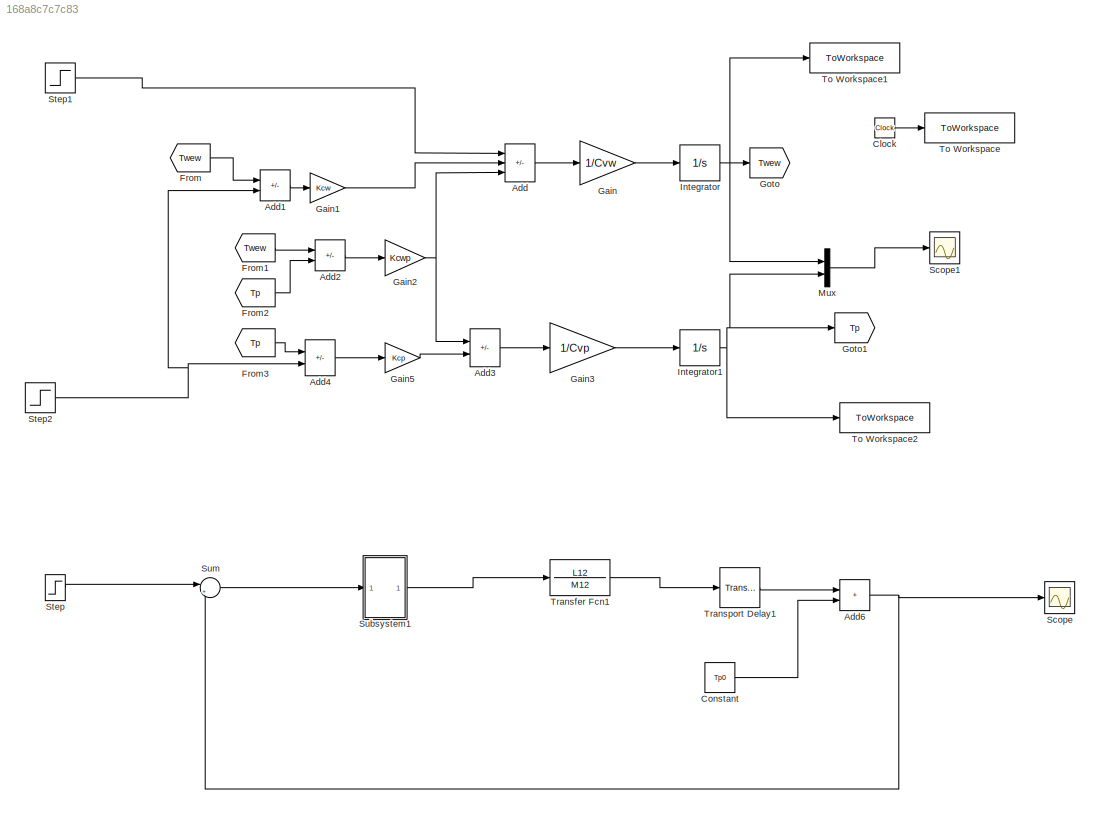
MODEL slx_168a8c7c7c83
KIND model
CONFIG AbsTol = auto
CONFIG EnableMultiTasking = off
CONFIG FixedStep = auto
CONFIG MaxStep = auto
CONFIG MinStep = auto
CONFIG RelTol = 1e-3
CONFIG SampleTimeConstraint = Unconstrained
CONFIG SolverName = VariableStepAuto
CONFIG StartTime = 0.0
CONFIG StopTime = czas_symulacji
BLOCK [Sum] Add
  IconShape = rectangular
  Inputs = +--
BLOCK [Sum] Add1
  IconShape = rectangular
  Inputs = +-
BLOCK [Sum] Add2
  IconShape = rectangular
  Inputs = +-
BLOCK [Sum] Add3
  IconShape = rectangular
  Inputs = +-
BLOCK [Sum] Add4
  IconShape = rectangular
  Inputs = +-
BLOCK [Sum] Add6
  IconShape = rectangular
BLOCK [Clock] Clock
BLOCK [Constant] Constant
  Value = Tp0
BLOCK [From] From
  GotoTag = Twew
BLOCK [From] From1
  GotoTag = Twew
BLOCK [From] From2
  GotoTag = Tp
BLOCK [From] From3
  GotoTag = Tp
BLOCK [Gain] Gain
  Gain = 1/Cvw
BLOCK [Gain] Gain1
  Gain = Kcw
BLOCK [Gain] Gain2
  Gain = Kcwp
BLOCK [Gain] Gain3
  Gain = 1/Cvp
BLOCK [Gain] Gain5
  Gain = Kcp
BLOCK [Goto] Goto
  GotoTag = Twew
BLOCK [Goto] Goto1
  GotoTag = Tp
BLOCK [Integrator] Integrator
  InitialCondition = Twew0
BLOCK [Integrator] Integrator1
  InitialCondition = Tp0
BLOCK [Mux] Mux
  DisplayOption = bar
  Inputs = 2
BLOCK [Scope] Scope
  Floating = off
  NumInputPorts = 1
  ScopeSpecificationString = Simulink.scopes.TimeScopeBlockCfg('CurrentConfiguration', extmgr.ConfigurationSet(extmgr.Configuration('Core','General UI',true),extmgr.Configuration('Core','Source UI',true),extmgr.Configuration('Sources','WiredSimulink',true),extmgr.Configuration('Visuals','Time Domain',true,'SerializedDisplays',{struct('MinYLimReal','9.64097','MaxYLimReal','13.2313','YLabelReal','','MinYLimMag','9.64097','MaxYL...<+1390ch>
BLOCK [Scope] Scope1
  Floating = off
  NumInputPorts = 1
  ScopeSpecificationString = Simulink.scopes.TimeScopeBlockCfg('CurrentConfiguration', extmgr.ConfigurationSet(extmgr.Configuration('Core','General UI',true),extmgr.Configuration('Core','Source UI',true),extmgr.Configuration('Sources','WiredSimulink',true,'DataLoggingVariableName','ScopeData1'),extmgr.Configuration('Visuals','Time Domain',true,'SerializedDisplays',{struct('MinYLimReal','8.2502','MaxYLimReal','25.74822','YLabe...<+1436ch>
BLOCK [Step] Step
  After = Tz0+dTz
  Before = Tz0
  SampleTime = 0
  Time = t0
BLOCK [Step] Step1
  After = qg0+dqg
  Before = qg0
  SampleTime = 0
  Time = t0
BLOCK [Step] Step2
  After = Tzew0+dTzew
  Before = Tzew0
  SampleTime = 0
  Time = t0
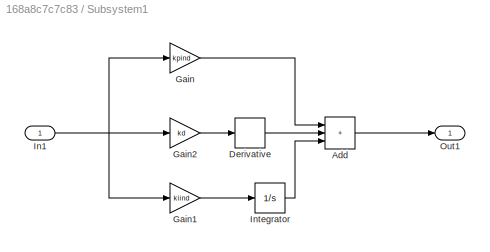
BLOCK [SubSystem] Subsystem1
BLOCK [Sum] Subsystem1/Add
  IconShape = rectangular
  Inputs = +++
BLOCK [Derivative] Subsystem1/Derivative
BLOCK [Gain] Subsystem1/Gain
  Gain = kpind
BLOCK [Gain] Subsystem1/Gain1
  Gain = kiind
BLOCK [Gain] Subsystem1/Gain2
  Gain = kd
BLOCK [Inport] Subsystem1/In1
BLOCK [Integrator] Subsystem1/Integrator
BLOCK [Outport] Subsystem1/Out1
BLOCK [Sum] Sum
  Inputs = |+-
BLOCK [ToWorkspace] To Workspace
  FixptAsFi = on
  MaxDataPoints = inf
  SampleTime = -1
  SaveFormat = Timeseries
  VariableName = t
BLOCK [ToWorkspace] To Workspace1
  FixptAsFi = on
  MaxDataPoints = inf
  SampleTime = -1
  VariableName = Twew
BLOCK [ToWorkspace] To Workspace2
  FixptAsFi = on
  MaxDataPoints = inf
  SampleTime = -1
  VariableName = Tp
BLOCK [TransferFcn] Transfer Fcn1
  Denominator = M12
  Numerator = L12
BLOCK [TransportDelay] Transport Delay1
  DelayTime = T0p
LINE Add1:1 -> Gain1:1
LINE Add2:1 -> Gain2:1
LINE Add3:1 -> Gain3:1
LINE Add4:1 -> Gain5:1
NET Add6:1 -> Scope:1, Sum:2
LINE Add:1 -> Gain:1
LINE Clock:1 -> To Workspace:1
LINE Constant:1 -> Add6:2
LINE From1:1 -> Add2:1
LINE From2:1 -> Add2:2
LINE From3:1 -> Add4:1
LINE From:1 -> Add1:1
LINE Gain1:1 -> Add:2
NET Gain2:1 -> Add3:1, Add:3
LINE Gain3:1 -> Integrator1:1
LINE Gain5:1 -> Add3:2
LINE Gain:1 -> Integrator:1
NET Integrator1:1 -> Goto1:1, Mux:2, To Workspace2:1
NET Integrator:1 -> Goto:1, Mux:1, To Workspace1:1
LINE Mux:1 -> Scope1:1
LINE Step1:1 -> Add:1
NET Step2:1 -> Add1:2, Add4:2
LINE Step:1 -> Sum:1
LINE Subsystem1/Add:1 -> Subsystem1/Out1:1
LINE Subsystem1/Derivative:1 -> Subsystem1/Add:2
LINE Subsystem1/Gain1:1 -> Subsystem1/Integrator:1
LINE Subsystem1/Gain2:1 -> Subsystem1/Derivative:1
LINE Subsystem1/Gain:1 -> Subsystem1/Add:1
NET Subsystem1/In1:1 -> Subsystem1/Gain1:1, Subsystem1/Gain2:1, Subsystem1/Gain:1
LINE Subsystem1/Integrator:1 -> Subsystem1/Add:3
LINE Subsystem1:1 -> Transfer Fcn1:1
LINE Sum:1 -> Subsystem1:1
LINE Transfer Fcn1:1 -> Transport Delay1:1
LINE Transport Delay1:1 -> Add6:1
note: NET lines group one-source signal fan-out (src -> all destinations, sorted); 1:1 wires keep LINE
